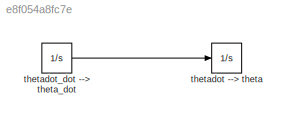
MODEL slx_e8f054a8fc7e
KIND model
BLOCK [Integrator] thetadot --> theta
  InitialCondition = theta0
  Ports = [1, 1]
BLOCK [Integrator] thetadot_dot --> theta_dot
  InitialCondition = theta_dot0
  Ports = [1, 1]
LINE thetadot_dot --> theta_dot:1 -> thetadot --> theta:1
